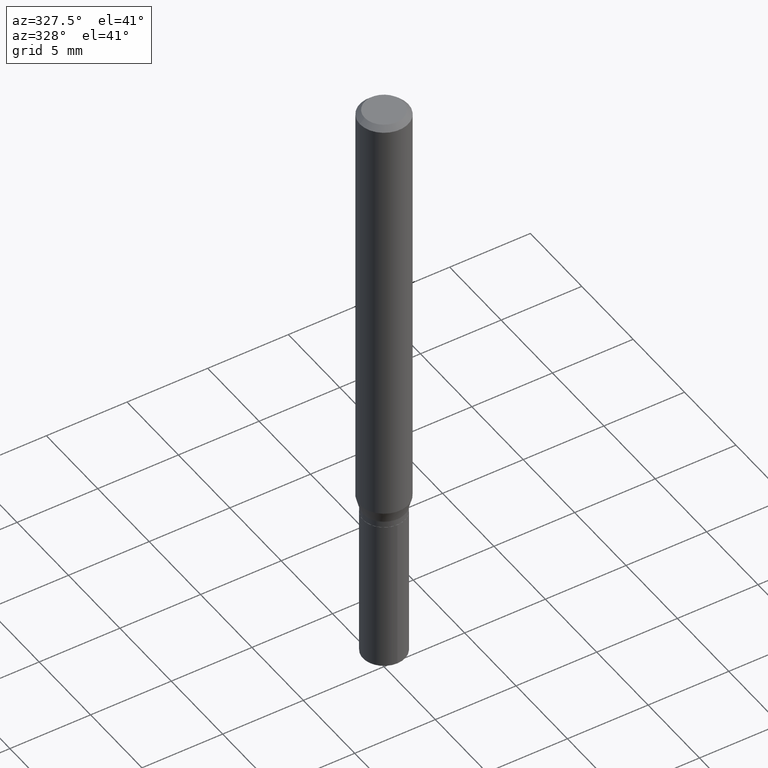
[diagram: clean part render]
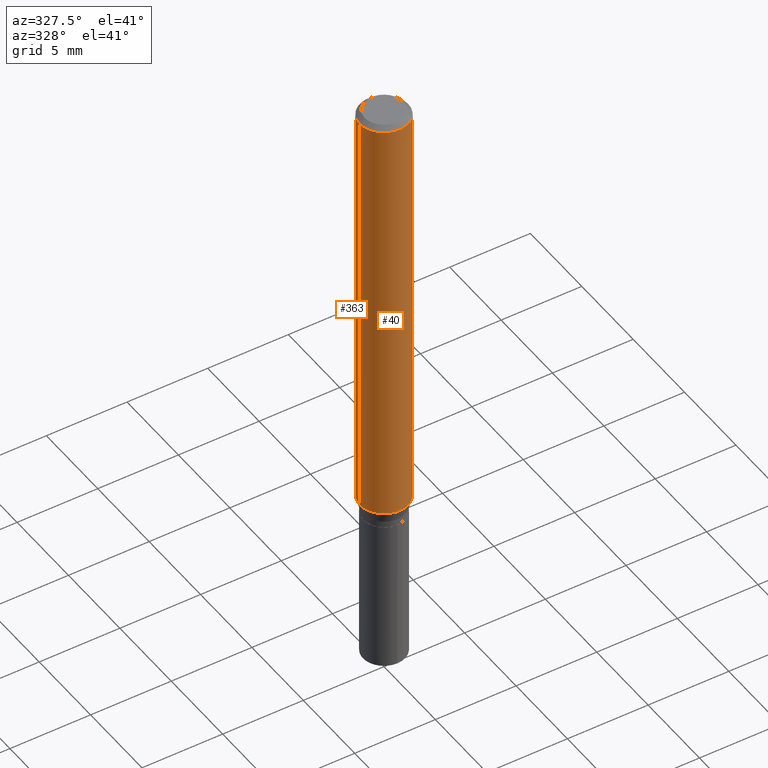
[diagram: same view with one multi-face feature highlighted, each face labeled with its STEP entity id]
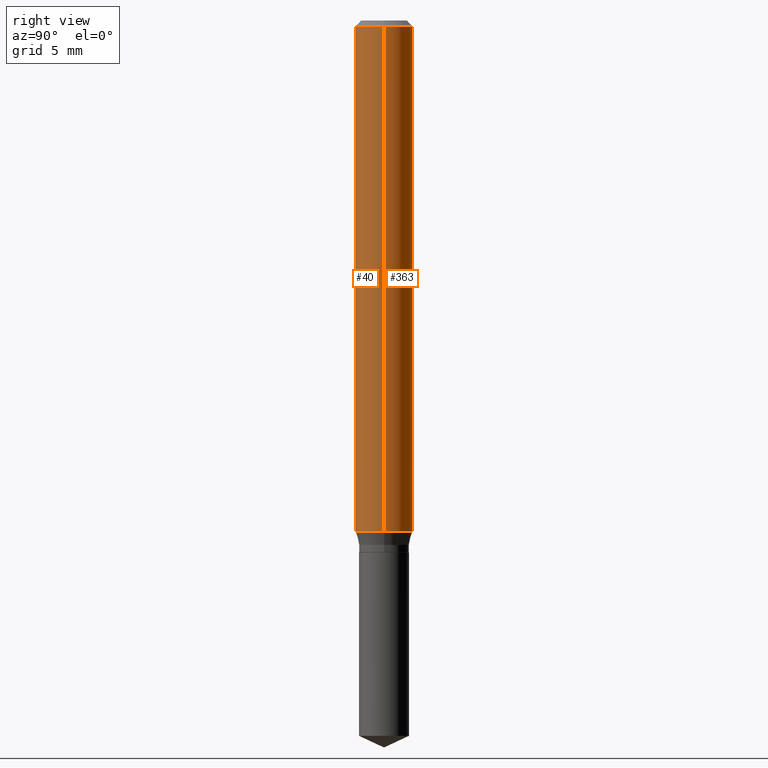
[diagram: same view with one multi-face feature highlighted, each face labeled with its STEP entity id]
A machine part, auxiliary view. The highlighted faces form ONE feature: a constant-radius fillet chain: 2 tangent blend faces with common blend radius 1.4999 mm. The faces share edges in the B-rep.
A second angle (right view) of the same feature is appended — it is thin or edge-on in the first view.
Their STEP definitions:
[1] entity #40 (Cylinder):
#4 = DIRECTION ( 'NONE',  ( 1.000000000000000000, -6.982962677686266711E-15, 0.000000000000000000 ) ) ;
#8 = VERTEX_POINT ( 'NONE', #128 ) ;
#12 = CARTESIAN_POINT ( 'NONE',  ( 0.05904999999999999832, -4.535783407291118600E-16, -0.01181000000000007044 ) ) ;
#23 = AXIS2_PLACEMENT_3D ( 'NONE', #41, #157, #4 ) ;
#40 = ADVANCED_FACE ( 'NONE', ( #187 ), #260, .T. ) ;
#41 = CARTESIAN_POINT ( 'NONE',  ( 2.888098660104663766E-31, -4.123439461173779647E-17, -0.01181000000000007044 ) ) ;
#75 = EDGE_LOOP ( 'NONE', ( #489, #393, #442, #441 ) ) ;
#79 = CARTESIAN_POINT ( 'NONE',  ( 0.05905000000000006771, -4.123439461173745257E-16, 2.879382386107503723E-30 ) ) ;
#83 = DIRECTION ( 'NONE',  ( -2.445468806185136877E-29, 3.491481338843145188E-15, 1.000000000000000000 ) ) ;
#88 = AXIS2_PLACEMENT_3D ( 'NONE', #306, #112, #227 ) ;
#112 = DIRECTION ( 'NONE',  ( -2.445468806185136597E-29, 3.491481338843145583E-15, 1.000000000000000000 ) ) ;
#128 = CARTESIAN_POINT ( 'NONE',  ( -0.05905000000000013710, -3.248399576289951039E-15, -1.050549811322097682 ) ) ;
#157 = DIRECTION ( 'NONE',  ( -2.445468806185136597E-29, 3.491481338843145583E-15, 1.000000000000000000 ) ) ;
#177 = CARTESIAN_POINT ( 'NONE',  ( 0.000000000000000000, 0.000000000000000000, 0.000000000000000000 ) ) ;
#178 = EDGE_CURVE ( 'NONE', #484, #414, #238, .T. ) ;
#187 = FACE_OUTER_BOUND ( 'NONE', #75, .T. ) ;
#205 = AXIS2_PLACEMENT_3D ( 'NONE', #177, #220, #343 ) ;
#212 = EDGE_CURVE ( 'NONE', #8, #484, #422, .T. ) ;
#218 = EDGE_CURVE ( 'NONE', #294, #414, #419, .T. ) ;
#220 = DIRECTION ( 'NONE',  ( -2.445468806185136597E-29, 3.491481338843145583E-15, 1.000000000000000000 ) ) ;
#227 = DIRECTION ( 'NONE',  ( 1.000000000000000000, -6.982962677686264344E-15, 0.000000000000000000 ) ) ;
#238 = CIRCLE ( 'NONE', #23, 0.05904999999999999832 ) ;
#260 = CYLINDRICAL_SURFACE ( 'NONE', #205, 0.05905000000000006771 ) ;
#294 = VERTEX_POINT ( 'NONE', #350 ) ;
#301 = VECTOR ( 'NONE', #83, 39.37007874015748143 ) ;
#303 = VECTOR ( 'NONE', #425, 39.37007874015748143 ) ;
#306 = CARTESIAN_POINT ( 'NONE',  ( 2.569086792931870576E-29, -3.667975061756291716E-15, -1.050549811322097682 ) ) ;
#321 = CARTESIAN_POINT ( 'NONE',  ( -0.05904999999999999832, -1.435029242717674243E-15, -0.01181000000000007044 ) ) ;
#343 = DIRECTION ( 'NONE',  ( 1.000000000000000000, -6.982962677686266711E-15, 4.876176775795936353E-29 ) ) ;
#350 = CARTESIAN_POINT ( 'NONE',  ( 0.05905000000000013710, -4.080319007873665847E-15, -1.050549811322097682 ) ) ;
#358 = EDGE_CURVE ( 'NONE', #8, #294, #412, .T. ) ;
#393 = ORIENTED_EDGE ( 'NONE', *, *, #358, .T. ) ;
#412 = CIRCLE ( 'NONE', #88, 0.05905000000000013710 ) ;
#414 = VERTEX_POINT ( 'NONE', #12 ) ;
#419 = LINE ( 'NONE', #79, #301 ) ;
#422 = LINE ( 'NONE', #460, #303 ) ;
#425 = DIRECTION ( 'NONE',  ( -2.445468806185136877E-29, 3.491481338843145188E-15, 1.000000000000000000 ) ) ;
#441 = ORIENTED_EDGE ( 'NONE', *, *, #178, .F. ) ;
#442 = ORIENTED_EDGE ( 'NONE', *, *, #218, .T. ) ;
#460 = CARTESIAN_POINT ( 'NONE',  ( -0.05905000000000006771, 4.195754854663396409E-16, -2.904631170795525045E-30 ) ) ;
#484 = VERTEX_POINT ( 'NONE', #321 ) ;
#489 = ORIENTED_EDGE ( 'NONE', *, *, #212, .F. ) ;
[2] entity #363 (Cylinder):
#8 = VERTEX_POINT ( 'NONE', #128 ) ;
#12 = CARTESIAN_POINT ( 'NONE',  ( 0.05904999999999999832, -4.535783407291118600E-16, -0.01181000000000007044 ) ) ;
#52 = EDGE_CURVE ( 'NONE', #414, #484, #281, .T. ) ;
#79 = CARTESIAN_POINT ( 'NONE',  ( 0.05905000000000006771, -4.123439461173745257E-16, 2.879382386107503723E-30 ) ) ;
#83 = DIRECTION ( 'NONE',  ( -2.445468806185136877E-29, 3.491481338843145188E-15, 1.000000000000000000 ) ) ;
#89 = CARTESIAN_POINT ( 'NONE',  ( 0.000000000000000000, 0.000000000000000000, 0.000000000000000000 ) ) ;
#118 = CYLINDRICAL_SURFACE ( 'NONE', #249, 0.05905000000000006771 ) ;
#125 = CIRCLE ( 'NONE', #298, 0.05905000000000013710 ) ;
#128 = CARTESIAN_POINT ( 'NONE',  ( -0.05905000000000013710, -3.248399576289951039E-15, -1.050549811322097682 ) ) ;
#204 = DIRECTION ( 'NONE',  ( -2.445468806185136597E-29, 3.491481338843145583E-15, 1.000000000000000000 ) ) ;
#212 = EDGE_CURVE ( 'NONE', #8, #484, #422, .T. ) ;
#217 = CARTESIAN_POINT ( 'NONE',  ( 2.888098660104663766E-31, -4.123439461173779647E-17, -0.01181000000000007044 ) ) ;
#218 = EDGE_CURVE ( 'NONE', #294, #414, #419, .T. ) ;
#249 = AXIS2_PLACEMENT_3D ( 'NONE', #89, #424, #325 ) ;
#252 = EDGE_LOOP ( 'NONE', ( #452, #401, #307, #473 ) ) ;
#281 = CIRCLE ( 'NONE', #316, 0.05904999999999999832 ) ;
#294 = VERTEX_POINT ( 'NONE', #350 ) ;
#298 = AXIS2_PLACEMENT_3D ( 'NONE', #433, #204, #356 ) ;
#301 = VECTOR ( 'NONE', #83, 39.37007874015748143 ) ;
#303 = VECTOR ( 'NONE', #425, 39.37007874015748143 ) ;
#307 = ORIENTED_EDGE ( 'NONE', *, *, #52, .F. ) ;
#316 = AXIS2_PLACEMENT_3D ( 'NONE', #217, #490, #357 ) ;
#321 = CARTESIAN_POINT ( 'NONE',  ( -0.05904999999999999832, -1.435029242717674243E-15, -0.01181000000000007044 ) ) ;
#325 = DIRECTION ( 'NONE',  ( 1.000000000000000000, -6.982962677686266711E-15, 4.876176775795936353E-29 ) ) ;
#350 = CARTESIAN_POINT ( 'NONE',  ( 0.05905000000000013710, -4.080319007873665847E-15, -1.050549811322097682 ) ) ;
#356 = DIRECTION ( 'NONE',  ( 1.000000000000000000, -6.982962677686264344E-15, 0.000000000000000000 ) ) ;
#357 = DIRECTION ( 'NONE',  ( 1.000000000000000000, -6.982962677686266711E-15, 0.000000000000000000 ) ) ;
#363 = ADVANCED_FACE ( 'NONE', ( #381 ), #118, .T. ) ;
#381 = FACE_OUTER_BOUND ( 'NONE', #252, .T. ) ;
#401 = ORIENTED_EDGE ( 'NONE', *, *, #212, .T. ) ;
#414 = VERTEX_POINT ( 'NONE', #12 ) ;
#419 = LINE ( 'NONE', #79, #301 ) ;
#422 = LINE ( 'NONE', #460, #303 ) ;
#423 = EDGE_CURVE ( 'NONE', #294, #8, #125, .T. ) ;
#424 = DIRECTION ( 'NONE',  ( -2.445468806185136597E-29, 3.491481338843145583E-15, 1.000000000000000000 ) ) ;
#425 = DIRECTION ( 'NONE',  ( -2.445468806185136877E-29, 3.491481338843145188E-15, 1.000000000000000000 ) ) ;
#433 = CARTESIAN_POINT ( 'NONE',  ( 2.569086792931870576E-29, -3.667975061756291716E-15, -1.050549811322097682 ) ) ;
#452 = ORIENTED_EDGE ( 'NONE', *, *, #423, .T. ) ;
#460 = CARTESIAN_POINT ( 'NONE',  ( -0.05905000000000006771, 4.195754854663396409E-16, -2.904631170795525045E-30 ) ) ;
#473 = ORIENTED_EDGE ( 'NONE', *, *, #218, .F. ) ;
#484 = VERTEX_POINT ( 'NONE', #321 ) ;
#490 = DIRECTION ( 'NONE',  ( -2.445468806185136597E-29, 3.491481338843145583E-15, 1.000000000000000000 ) ) ;